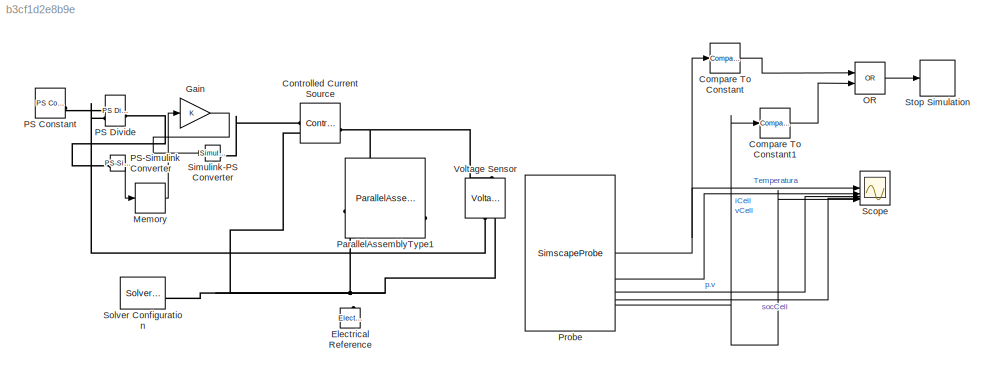
MODEL slx_b3cf1d2e8b9e
KIND model
CONFIG AbsTol = auto
CONFIG EnableMultiTasking = off
CONFIG FixedStep = auto
CONFIG MaxStep = auto
CONFIG MinStep = auto
CONFIG RelTol = 1e-3
CONFIG SampleTimeConstraint = Unconstrained
CONFIG SolverName = VariableStepAuto
CONFIG StartTime = 0.0
CONFIG StopTime = 3600
BLOCK [Reference] Compare To Constant  REF=simulink/Logic and Bit
Operations/Compare
To Constant
  SourceBlock = simulink/Logic and Bit\nOperations/Compare\nTo Constant
  SourceType = Compare To Constant
BLOCK [Reference] Compare To Constant1  REF=simulink/Logic and Bit
Operations/Compare
To Constant
  SourceBlock = simulink/Logic and Bit\nOperations/Compare\nTo Constant
  SourceType = Compare To Constant
BLOCK [Reference] Controlled Current Source  REF=fl_lib/Electrical/Electrical Sources/Controlled Current
Source
  SourceBlock = fl_lib/Electrical/Electrical Sources/Controlled Current\nSource
  SourceType = Controlled Current\nSource
BLOCK [Reference] Electrical Reference  REF=fl_lib/Electrical/Electrical Elements/Electrical Reference
  NameLocation = right
  SourceBlock = fl_lib/Electrical/Electrical Elements/Electrical Reference
  SourceType = Electrical Reference
BLOCK [Gain] Gain
BLOCK [Memory] Memory
BLOCK [Logic] OR
  AllPortsSameDT = off
  IconShape = distinctive
  Operator = OR
  OutDataTypeStr = boolean
BLOCK [Reference] PS Constant  REF=fl_lib/Physical Signals/Sources/PS Constant
  SourceBlock = fl_lib/Physical Signals/Sources/PS Constant
  SourceType = PS Constant
BLOCK [Reference] PS Divide  REF=fl_lib/Physical Signals/Functions/PS Divide
  SourceBlock = fl_lib/Physical Signals/Functions/PS Divide
  SourceType = PS Divide
BLOCK [Reference] PS-Simulink Converter  REF=nesl_utility/PS-Simulink
Converter
  SourceBlock = nesl_utility/PS-Simulink\nConverter
  SourceType = PS-Simulink\nConverter
BLOCK [Reference] ParallelAssemblyType1  REF=Batteries_lib/ParallelAssemblies/ParallelAssemblyType1
  SourceBlock = Batteries_lib/ParallelAssemblies/ParallelAssemblyType1
  SourceType = ParallelAssemblyType1
BLOCK [SimscapeProbe] Probe
  BoundBlock = 48
  Variables = {"celda_ioniq.cell_temperature":{"Probing":"ON"},"iCell":{"Probing":"ON"},"p.v":{"Probing":"ON"},"socCell":{"Probing":"ON"},"vCell":{"Probing":"ON"}}
BLOCK [Scope] Scope
  ActiveDisplayString = 2
  ActiveDisplayYMaximum = 16.157385362867323
  ActiveDisplayYMinimum = -0.20037377584270732
  Floating = off
  GraphicalSettings = {"Style":{"BackgroundColor":[0.12941176470588237,0.12941176470588237,0.12941176470588237],"AxesColor":[0.07058823529411765,0.07058823529411765,0.07058823529411765],"LabelsColor":[0.8509803921568627,0.8509803921568627,0.8509803921568627],"PreserveColors":false,"Visible":[true,true,true,true,true],"LineStyle":["-","-","-","-","-"],"LineWidth":[1.5,1.5,1.5,1.5,1.5],"BarWidth":[0.9,0.9,0.9,0.9,0.9],"L...<+4015ch>
  LayoutDimensionsString = [2, 3]
  MultipleDisplayCache = [{"MaxYLimMag":335.41875,"MaxYLimReal":265.68632385120355,"MinYLimMag":0,"MinYLimReal":254.66132385120346,"PlotAsMagnitudePhase":false,"ShowGrid":true,"ShowLegend":true,"Title":"%<SignalLabel>","YLabel":""},{"MaxYLimMag":335.41875,"MaxYLimReal":16.157385362867323,"MinYLimMag":0,"MinYLimReal":-0.20037377584270732,"PlotAsMagnitudePhase":false,"ShowGrid":true,"ShowLegend":true,"Title":"%<SignalLabel>...<+846ch>
  NumInputPorts = 5
  ScopeFrameLocation = window
  ShowLegend = on
  WasSavedAsWebScope = on
  WindowPosition = [1.000000,49.000000,1536.000000,889.000000,]
BLOCK [Reference] Simulink-PS Converter  REF=nesl_utility/Simulink-PS
Converter
  SourceBlock = nesl_utility/Simulink-PS\nConverter
  SourceType = Simulink-PS\nConverter
BLOCK [Reference] Solver Configuration  REF=nesl_utility/Solver
Configuration
  SourceBlock = nesl_utility/Solver\nConfiguration
  SourceType = Solver\nConfiguration
BLOCK [Stop] Stop Simulation
BLOCK [Reference] Voltage Sensor  REF=fl_lib/Electrical/Electrical Sensors/Voltage Sensor
  NameLocation = right
  SourceBlock = fl_lib/Electrical/Electrical Sensors/Voltage Sensor
  SourceType = Voltage Sensor
LINE Compare To Constant1:1 -> OR:2
LINE Compare To Constant:1 -> OR:1
LINE Gain:1 -> Simulink-PS Converter:1
LINE Memory:1 -> Gain:1
LINE OR:1 -> Stop Simulation:1
LINE PS-Simulink Converter:1 -> Memory:1
NET Probe:1 -> Compare To Constant:1, Scope:1
LINE Probe:2 -> Scope:2
LINE Probe:3 -> Scope:3
LINE Probe:4 -> Scope:4
NET Probe:5 -> Compare To Constant1:1, Scope:5
PNET net1: Controlled Current Source:LConn1 -- ParallelAssemblyType1:LConn1 -- Voltage Sensor:LConn1
PLINE Controlled Current Source:RConn1 -- Simulink-PS Converter:RConn1
PNET net2: Controlled Current Source:RConn2 -- Electrical Reference:LConn1 -- ParallelAssemblyType1:RConn2 -- Solver Configuration:RConn1 -- Voltage Sensor:RConn2
PLINE PS Constant:RConn1 -- PS Divide:LConn1
PLINE PS Divide:LConn2 -- Voltage Sensor:RConn1
PLINE PS Divide:RConn1 -- PS-Simulink Converter:LConn1
note: NET lines group one-source signal fan-out (src -> all destinations, sorted); 1:1 wires keep LINE; PNET lines group multi-terminal physical nets as a canonical sorted terminal list (undirected conserving connections); 2-terminal nets keep the pairwise PLINE form
